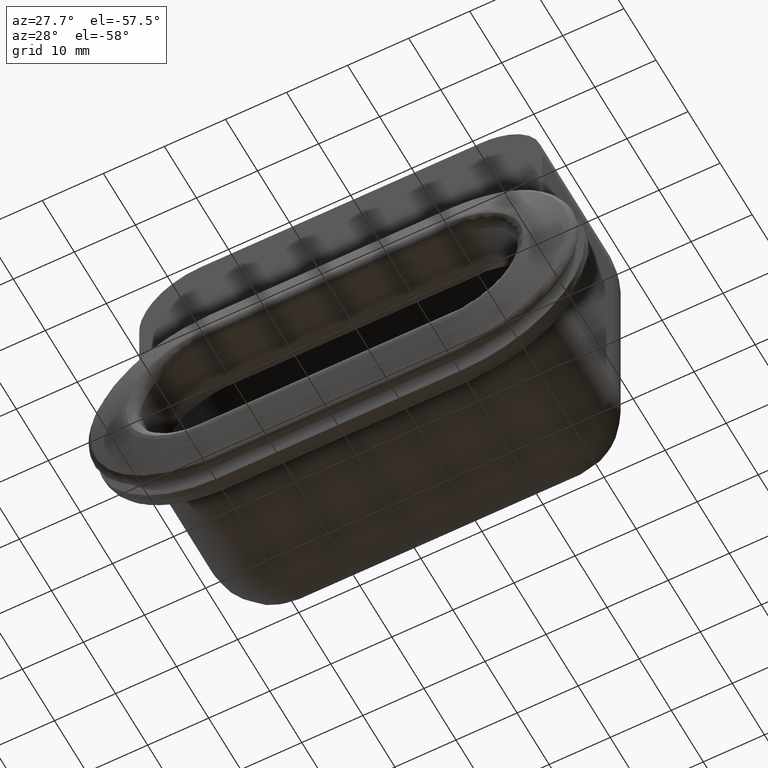
[diagram: clean part render]
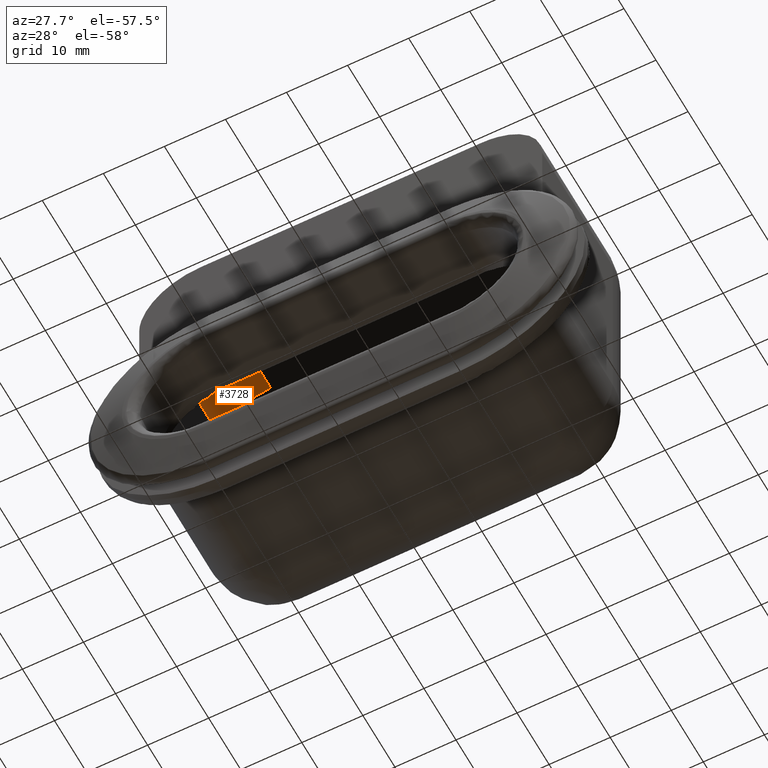
[diagram: same view with one face highlighted and labeled with its STEP entity id]
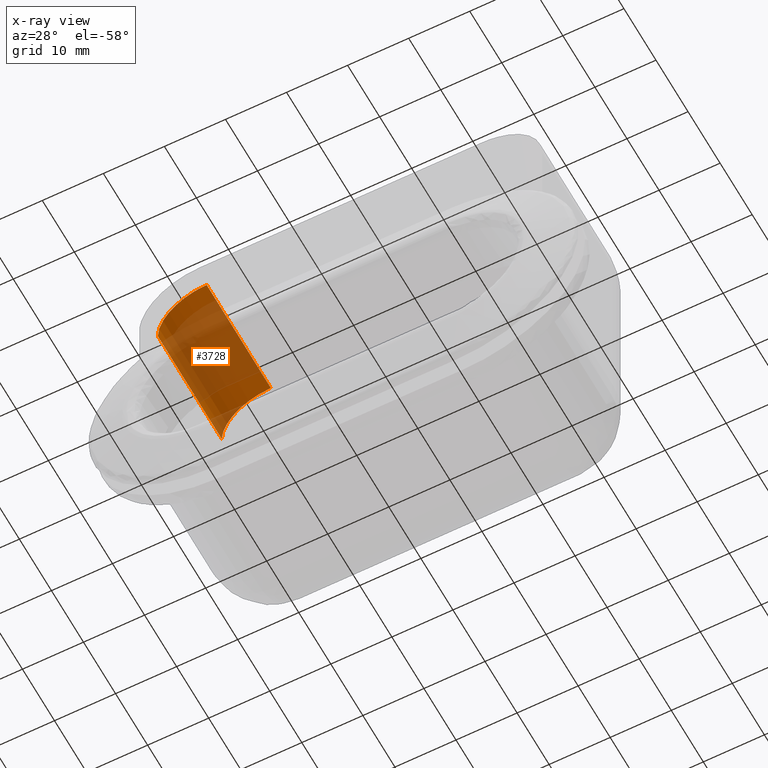
[diagram: x-ray of the same camera — body ghosted, the highlighted face saturated]
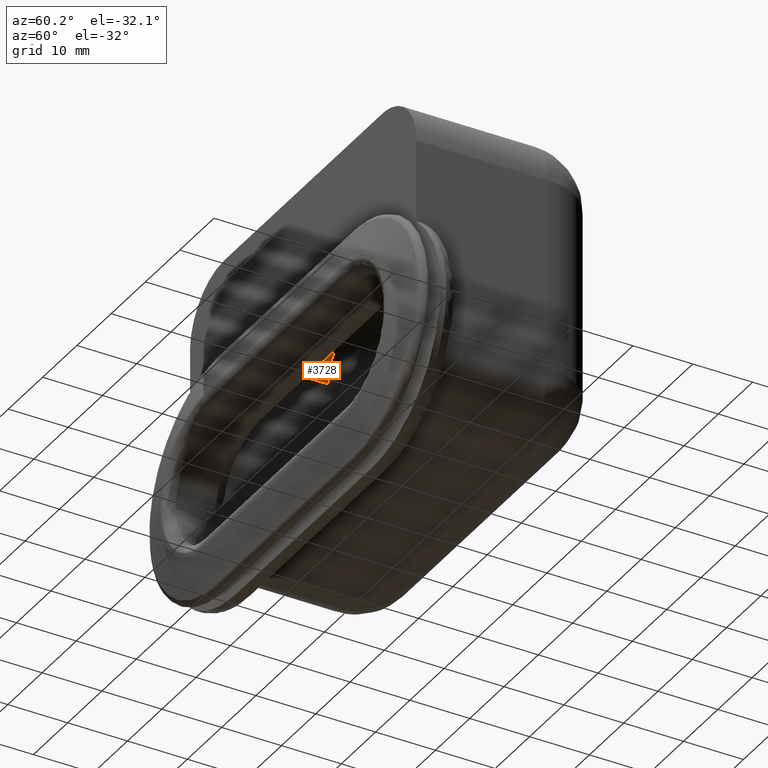
[diagram: same view with one face highlighted and labeled with its STEP entity id]
A machine part, auxiliary view. The second image highlights one B-rep face of the part: STEP entity #3728.
The next image is the same camera in x-ray: the body ghosted, the highlighted face saturated — about 68% of this face is hidden behind the body in this view.
A second angle (auxiliary view) of the same face is appended — the face is thin or edge-on in the first view.
In plain terms, the highlighted face is a freeform B-spline surface patch.
Its self-contained STEP definition (entity closure, byte-faithful):
#3467=CARTESIAN_POINT('',(-31.0,27.0,29.0));
#3468=VERTEX_POINT('',#3467);
#3578=CARTESIAN_POINT('',(-23.0,27.0,37.0));
#3579=VERTEX_POINT('',#3578);
#3593=CARTESIAN_POINT('',(-23.0,27.0,37.000000000000007));
#3594=CARTESIAN_POINT('',(-31.000000000000007,27.000000000000011,37.0));
#3595=CARTESIAN_POINT('',(-31.0,27.0,29.0));
#3603=(BOUNDED_CURVE()B_SPLINE_CURVE(2,(#3593,#3594,#3595),.UNSPECIFIED.,.F.,.U.)CURVE()GEOMETRIC_REPRESENTATION_ITEM()QUASI_UNIFORM_CURVE()RATIONAL_B_SPLINE_CURVE((1.0,0.707106781186548,1.0))REPRESENTATION_ITEM(''));
#3604=EDGE_CURVE('',#3579,#3468,#3603,.T.);
#3684=CARTESIAN_POINT('',(-30.997258599804450,27.500000000000000,28.790584413537012));
#3685=CARTESIAN_POINT('',(-30.997258599804450,6.487500000000001,28.790584413537012));
#3686=CARTESIAN_POINT('',(-31.225795609567925,27.499999999999996,37.518060708752941));
#3687=CARTESIAN_POINT('',(-31.225795609567925,6.487500000000001,37.518060708752941));
#3688=CARTESIAN_POINT('',(-22.511611683721160,27.500000000000000,36.985078387374926));
#3689=CARTESIAN_POINT('',(-22.511611683721160,6.487500000000001,36.985078387374926));
#3697=(BOUNDED_SURFACE()B_SPLINE_SURFACE(1,2,((#3684,#3686,#3688),(#3685,#3687,#3689)),.UNSPECIFIED.,.F.,.F.,.U.)B_SPLINE_SURFACE_WITH_KNOTS((2,2),(3,3),(0.0,21.012499999999999),(0.0,14.080336988538660),.UNSPECIFIED.)GEOMETRIC_REPRESENTATION_ITEM()RATIONAL_B_SPLINE_SURFACE(((1.0,0.675590207615660,1.0),(1.0,0.675590207615660,1.0)))REPRESENTATION_ITEM('')SURFACE());
#3698=CARTESIAN_POINT('',(-31.0,7.0,29.0));
#3699=VERTEX_POINT('',#3698);
#3700=CARTESIAN_POINT('',(-23.0,7.0,37.0));
#3701=VERTEX_POINT('',#3700);
#3702=CARTESIAN_POINT('',(-31.0,7.0,29.0));
#3703=CARTESIAN_POINT('',(-31.000000000000007,6.999999999999999,37.0));
#3704=CARTESIAN_POINT('',(-23.0,7.0,37.000000000000007));
#3712=(BOUNDED_CURVE()B_SPLINE_CURVE(2,(#3702,#3703,#3704),.UNSPECIFIED.,.F.,.U.)CURVE()GEOMETRIC_REPRESENTATION_ITEM()QUASI_UNIFORM_CURVE()RATIONAL_B_SPLINE_CURVE((1.0,0.707106781186548,1.0))REPRESENTATION_ITEM(''));
#3713=EDGE_CURVE('',#3699,#3701,#3712,.T.);
#3714=ORIENTED_EDGE('',*,*,#3713,.F.);
#3715=CARTESIAN_POINT('',(-31.0,27.0,29.0));
#3716=CARTESIAN_POINT('',(-31.0,7.0,29.0));
#3717=QUASI_UNIFORM_CURVE('',1,(#3715,#3716),.UNSPECIFIED.,.F.,.U.);
#3718=EDGE_CURVE('',#3468,#3699,#3717,.T.);
#3719=ORIENTED_EDGE('',*,*,#3718,.F.);
#3720=ORIENTED_EDGE('',*,*,#3604,.F.);
#3721=CARTESIAN_POINT('',(-23.0,7.0,37.0));
#3722=CARTESIAN_POINT('',(-23.0,27.0,37.0));
#3723=QUASI_UNIFORM_CURVE('',1,(#3721,#3722),.UNSPECIFIED.,.F.,.U.);
#3724=EDGE_CURVE('',#3701,#3579,#3723,.T.);
#3725=ORIENTED_EDGE('',*,*,#3724,.F.);
#3726=EDGE_LOOP('',(#3714,#3719,#3720,#3725));
#3727=FACE_OUTER_BOUND('',#3726,.T.);
#3728=ADVANCED_FACE('',(#3727),#3697,.F.);